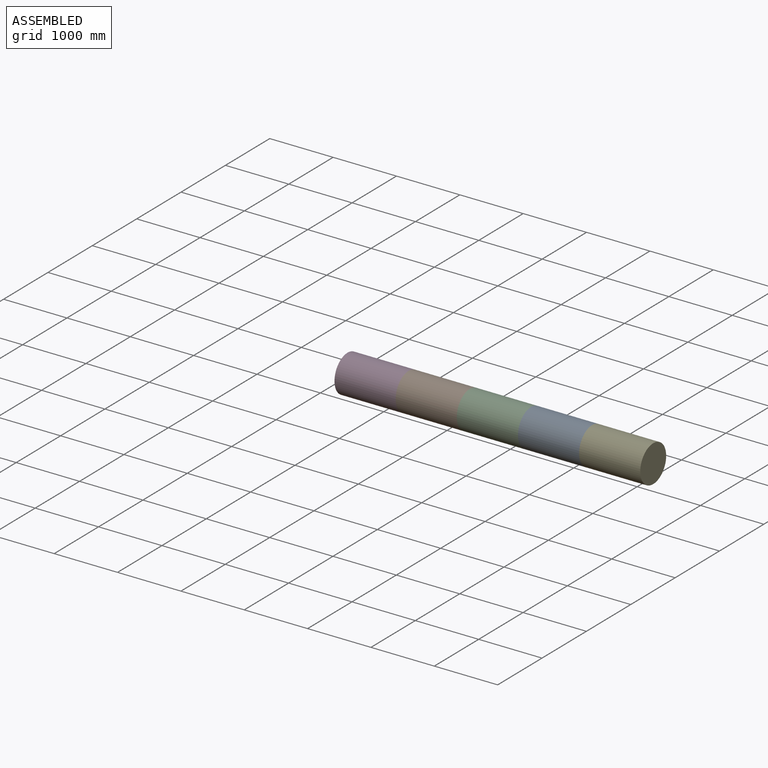
[diagram: assembled view]
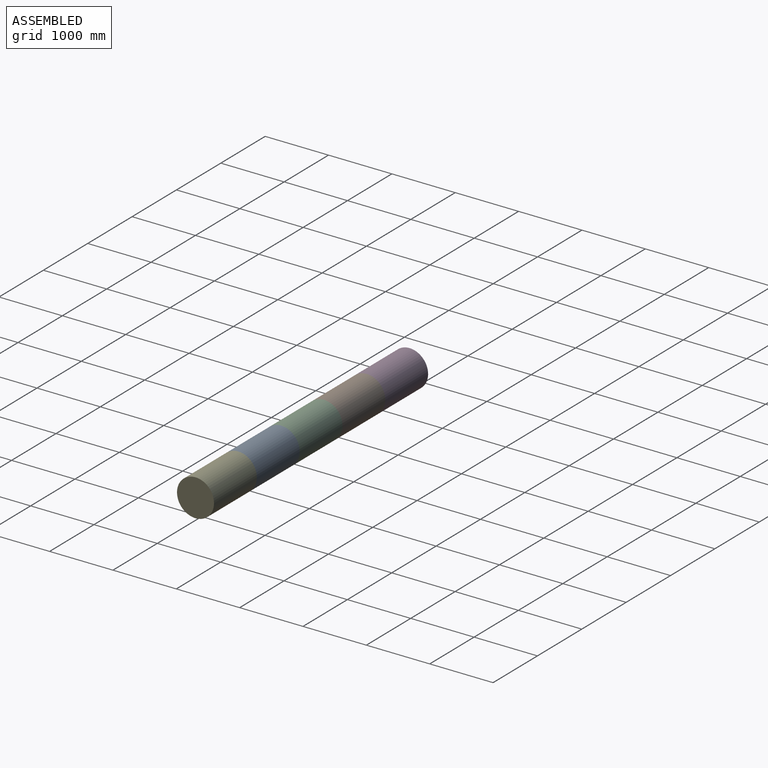
[diagram: assembled view, second angle]
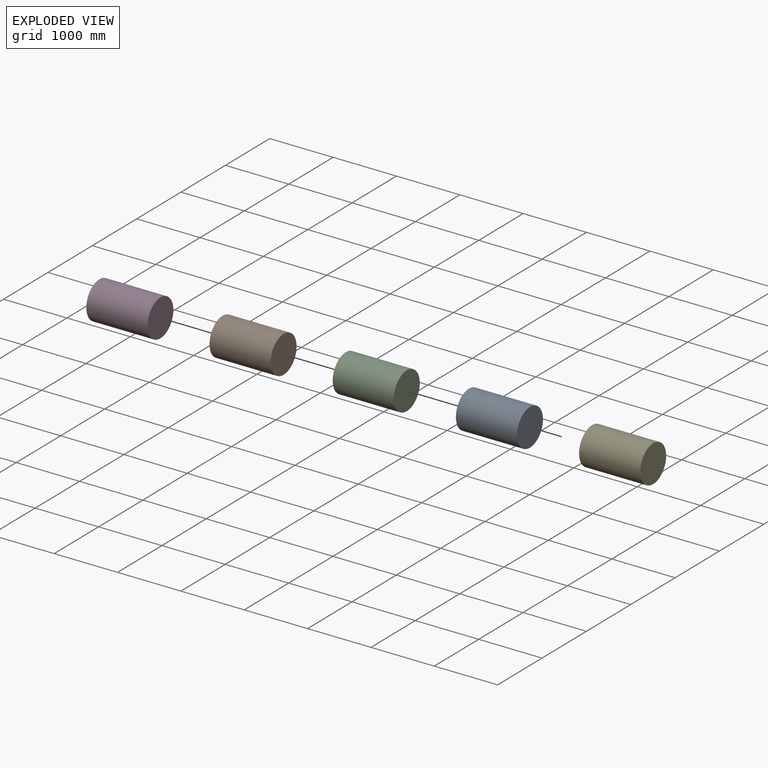
[diagram: exploded view]
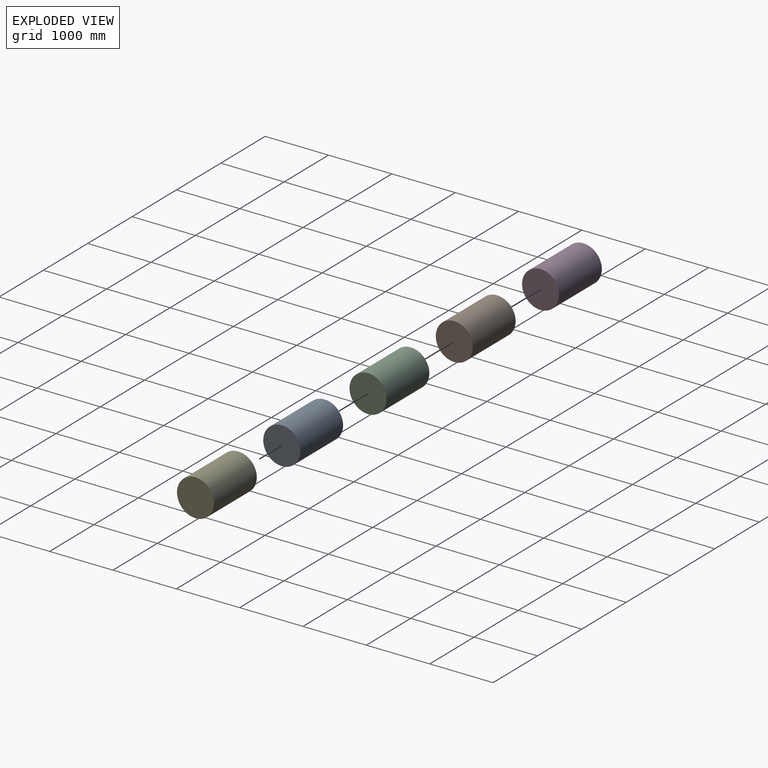
[diagram: exploded view, second angle]
ASSEMBLY  parts=5 mates=4
PART A: 3 faces, bbox 965.2x584.2x584.2 mm
  f0: cylinder r=292.1mm len=965.2mm, axis (-1,0,0), area 1771449.3mm2, adj f1,f2
  f1: plane 584.2x584.2mm, normal (1,0,0), area 268048.3mm2, adj f0
  f2: plane 584.2x584.2mm, normal (-1,0,0), area 268048.3mm2, adj f0
PART B: same geometry as A
PART C: same geometry as A
PART D: same geometry as A
PART E: same geometry as A
PLACE A t=(3723.83,-758.3,565.27)mm
PLACE B t=(1793.43,-758.3,565.27)mm
PLACE C t=(2758.63,-758.3,565.27)mm
PLACE D t=(828.23,-758.3,565.27)mm
PLACE E t=(4689.03,-758.3,565.27)mm
MATE fastened A.f0 <-> E.f0  axis (1,0,0) through (2250.63,54.5,222.37)mm
MATE fastened D.f0 <-> B.f0  axis (1,0,0) through (-644.97,54.5,222.37)mm
MATE fastened A.f0 <-> C.f0  axis (-1,0,0) through (1285.43,54.5,222.37)mm
MATE fastened C.f0 <-> B.f0  axis (-1,0,0) through (320.23,54.5,222.37)mm
